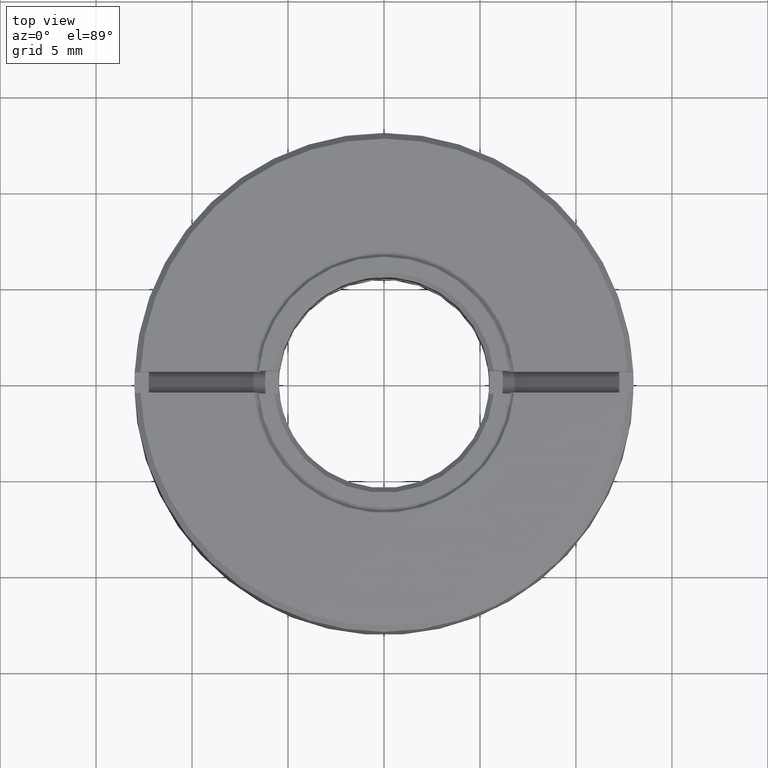
[diagram: clean part render]
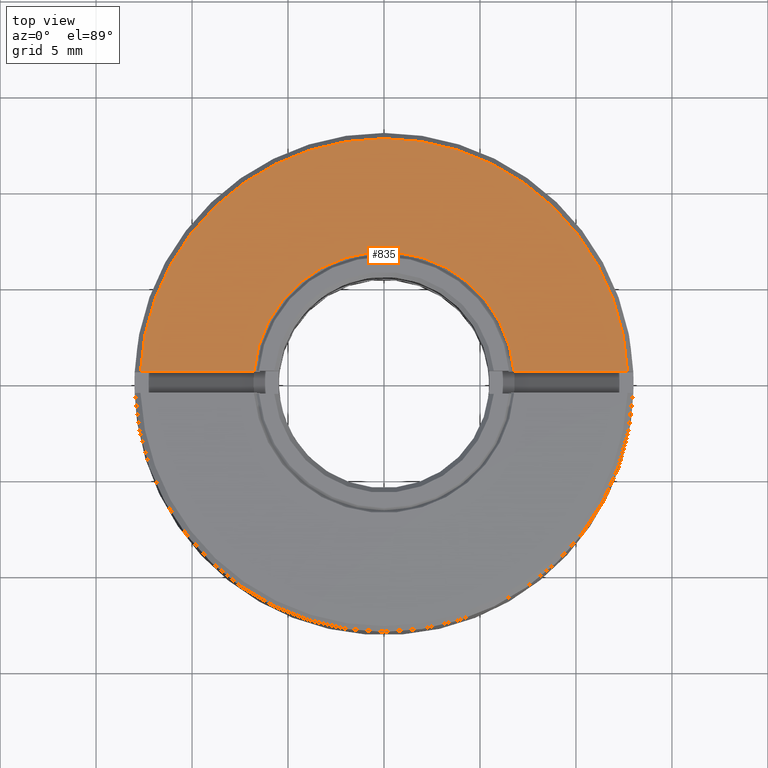
[diagram: same view with one face highlighted and labeled with its STEP entity id]
A machine part, top view. The second image highlights one B-rep face of the part: STEP entity #835.
In plain terms, the highlighted planar face has unit normal (0, 0, 1).
Its self-contained STEP definition (entity closure, byte-faithful):
#49 = DIRECTION ( 'NONE',  ( 1.000000000000000000, 0.000000000000000000, 0.000000000000000000 ) ) ;
#68 = DIRECTION ( 'NONE',  ( 1.000000000000000000, 0.000000000000000000, -0.000000000000000000 ) ) ;
#111 = CARTESIAN_POINT ( 'NONE',  ( 6.777720855863618610, 0.5500000000000000444, 4.999999999997727151 ) ) ;
#113 = CARTESIAN_POINT ( 'NONE',  ( 0.000000000000000000, 0.5500000000000000444, 5.000000000000000000 ) ) ;
#151 = VERTEX_POINT ( 'NONE', #797 ) ;
#244 = VECTOR ( 'NONE', #855, 1000.000000000000000 ) ;
#297 = EDGE_CURVE ( 'NONE', #1224, #602, #568, .T. ) ;
#312 = VECTOR ( 'NONE', #68, 1000.000000000000000 ) ;
#318 = EDGE_CURVE ( 'NONE', #813, #602, #522, .T. ) ;
#417 = ORIENTED_EDGE ( 'NONE', *, *, #950, .T. ) ;
#522 = CIRCLE ( 'NONE', #595, 12.69999999999998863 ) ;
#568 = LINE ( 'NONE', #698, #312 ) ;
#595 = AXIS2_PLACEMENT_3D ( 'NONE', #1137, #1131, #1031 ) ;
#602 = VERTEX_POINT ( 'NONE', #1440 ) ;
#625 = EDGE_CURVE ( 'NONE', #813, #151, #1082, .T. ) ;
#634 = FACE_OUTER_BOUND ( 'NONE', #1250, .T. ) ;
#698 = CARTESIAN_POINT ( 'NONE',  ( 0.000000000000000000, 0.5500000000000000444, 5.000000000000000000 ) ) ;
#736 = ORIENTED_EDGE ( 'NONE', *, *, #297, .T. ) ;
#797 = CARTESIAN_POINT ( 'NONE',  ( -6.777720855861958604, 0.5500000000000000444, 4.999999999996071587 ) ) ;
#813 = VERTEX_POINT ( 'NONE', #1013 ) ;
#835 = ADVANCED_FACE ( 'NONE', ( #634 ), #1503, .T. ) ;
#855 = DIRECTION ( 'NONE',  ( 1.000000000000000000, 0.000000000000000000, -0.000000000000000000 ) ) ;
#873 = CARTESIAN_POINT ( 'NONE',  ( 0.000000000000000000, 0.000000000000000000, 5.000000000000000000 ) ) ;
#950 = EDGE_CURVE ( 'NONE', #151, #1224, #1008, .T. ) ;
#1008 = CIRCLE ( 'NONE', #1444, 6.799999999998362910 ) ;
#1013 = CARTESIAN_POINT ( 'NONE',  ( -12.68808496188450441, 0.5500000000000000444, 5.000000000000001776 ) ) ;
#1031 = DIRECTION ( 'NONE',  ( -1.000000000000000000, 0.000000000000000000, 0.000000000000000000 ) ) ;
#1082 = LINE ( 'NONE', #113, #244 ) ;
#1131 = DIRECTION ( 'NONE',  ( 0.000000000000000000, 0.000000000000000000, -1.000000000000000000 ) ) ;
#1137 = CARTESIAN_POINT ( 'NONE',  ( 0.000000000000000000, 0.000000000000000000, 5.000000000000001776 ) ) ;
#1164 = DIRECTION ( 'NONE',  ( -0.000000000000000000, 0.000000000000000000, -1.000000000000000000 ) ) ;
#1224 = VERTEX_POINT ( 'NONE', #111 ) ;
#1241 = DIRECTION ( 'NONE',  ( 0.000000000000000000, 0.000000000000000000, 1.000000000000000000 ) ) ;
#1250 = EDGE_LOOP ( 'NONE', ( #1604, #417, #736, #1286 ) ) ;
#1286 = ORIENTED_EDGE ( 'NONE', *, *, #318, .F. ) ;
#1366 = DIRECTION ( 'NONE',  ( 1.000000000000000000, 0.000000000000000000, -0.000000000000000000 ) ) ;
#1429 = CARTESIAN_POINT ( 'NONE',  ( 0.000000000000000000, 0.000000000000000000, 4.999999999995452526 ) ) ;
#1440 = CARTESIAN_POINT ( 'NONE',  ( 12.68808496188450441, 0.5500000000000000444, 5.000000000000002665 ) ) ;
#1444 = AXIS2_PLACEMENT_3D ( 'NONE', #1429, #1164, #49 ) ;
#1503 = PLANE ( 'NONE',  #1531 ) ;
#1531 = AXIS2_PLACEMENT_3D ( 'NONE', #873, #1241, #1366 ) ;
#1604 = ORIENTED_EDGE ( 'NONE', *, *, #625, .T. ) ;